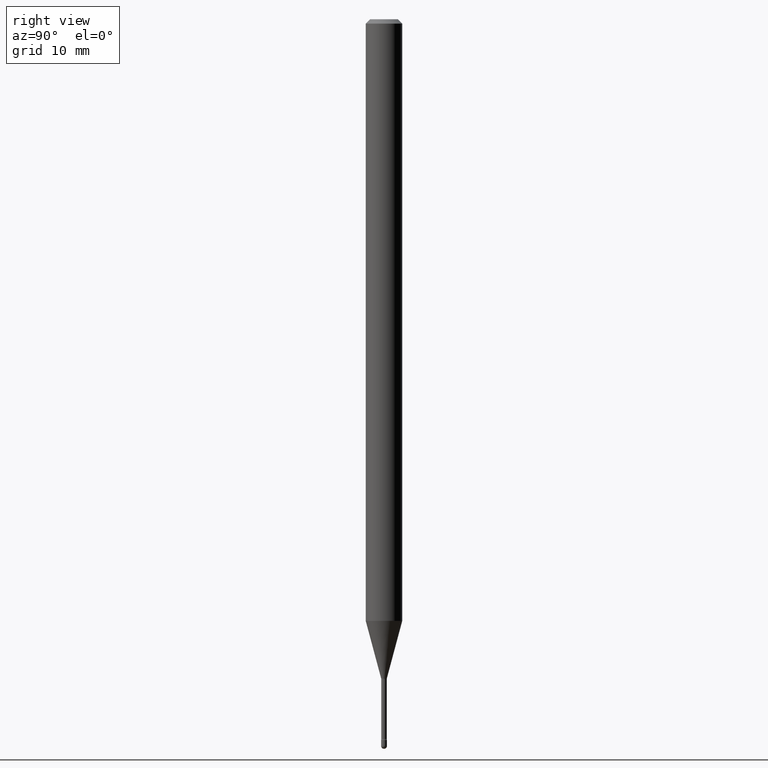
[diagram: clean part render]
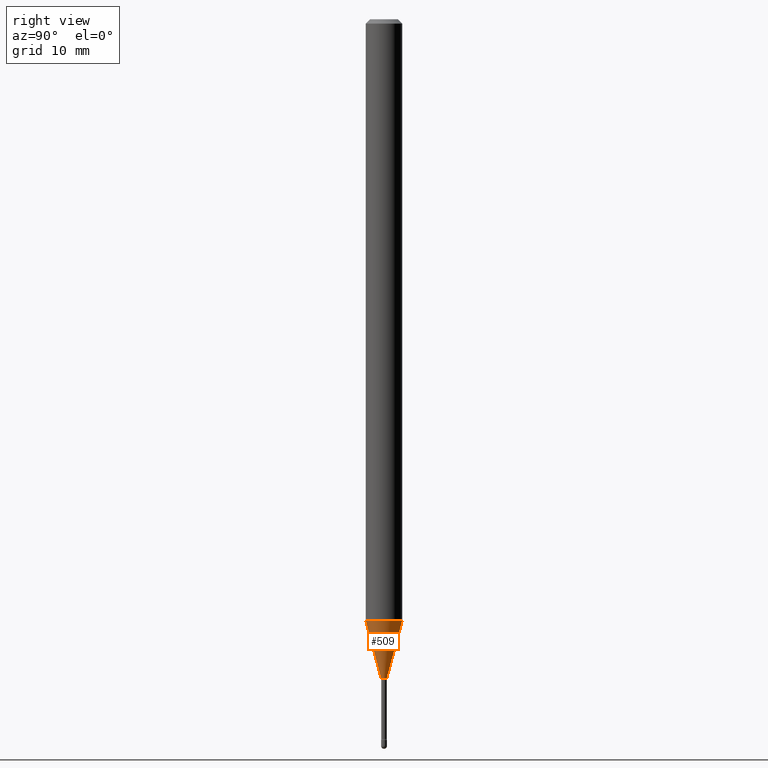
[diagram: same view with one face highlighted and labeled with its STEP entity id]
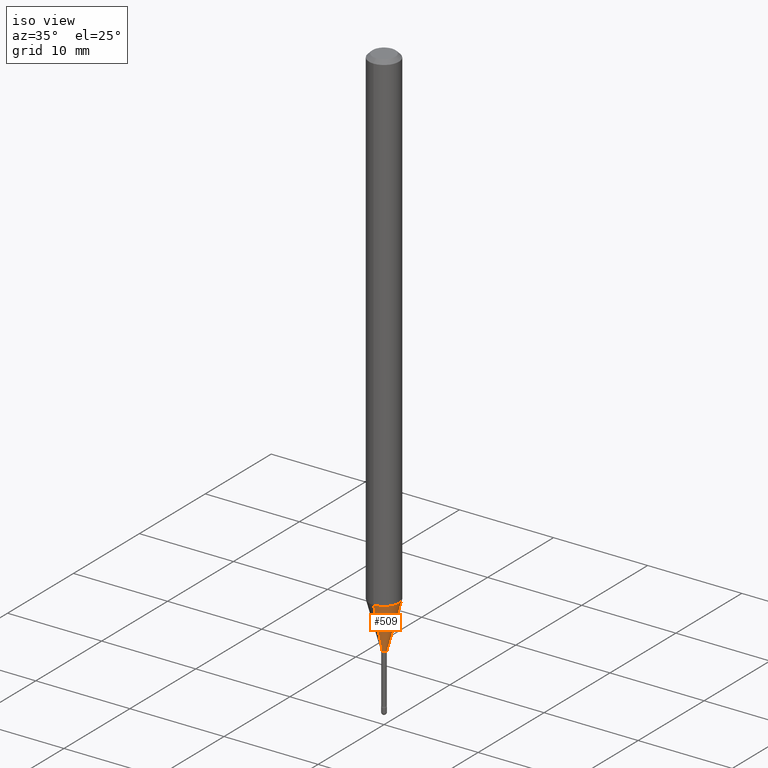
[diagram: same view with one face highlighted and labeled with its STEP entity id]
A machine part, right view. The second image highlights one B-rep face of the part: STEP entity #509.
A second angle (iso view) of the same face is appended — the face is thin or edge-on in the first view.
In plain terms, the highlighted conical surface has half-angle 15 deg.
Its self-contained STEP definition (entity closure, byte-faithful):
#16 = VERTEX_POINT ( 'NONE', #231 ) ;
#47 = CONICAL_SURFACE ( 'NONE', #435, 0.009911112605663977004, 0.2617993877991500740 ) ;
#72 = DIRECTION ( 'NONE',  ( 1.839019923739598738E-15, 0.2588190451025247363, 0.9659258262890673130 ) ) ;
#73 = EDGE_CURVE ( 'NONE', #468, #186, #315, .T. ) ;
#80 = CARTESIAN_POINT ( 'NONE',  ( 5.521981425071489168E-29, -7.884250154350085352E-15, -2.258092501787273498 ) ) ;
#82 = LINE ( 'NONE', #87, #338 ) ;
#87 = CARTESIAN_POINT ( 'NONE',  ( -6.920892941964220806E-17, -0.009911112605671861323, -2.258092501787273498 ) ) ;
#94 = VERTEX_POINT ( 'NONE', #356 ) ;
#105 = ORIENTED_EDGE ( 'NONE', *, *, #336, .T. ) ;
#130 = DIRECTION ( 'NONE',  ( -6.982962677686265922E-15, -1.000000000000000000, 0.000000000000000000 ) ) ;
#135 = DIRECTION ( 'NONE',  ( -2.445418609158330571E-29, 3.491553223842568999E-15, 1.000000000000000000 ) ) ;
#159 = EDGE_LOOP ( 'NONE', ( #105, #498, #225, #330 ) ) ;
#186 = VERTEX_POINT ( 'NONE', #440 ) ;
#201 = AXIS2_PLACEMENT_3D ( 'NONE', #473, #258, #229 ) ;
#225 = ORIENTED_EDGE ( 'NONE', *, *, #73, .F. ) ;
#229 = DIRECTION ( 'NONE',  ( -6.982962677686265922E-15, -1.000000000000000000, 0.000000000000000000 ) ) ;
#231 = CARTESIAN_POINT ( 'NONE',  ( -6.920892941964220806E-17, -0.009911112605671861323, -2.258092501787273498 ) ) ;
#255 = DIRECTION ( 'NONE',  ( -2.445418609158330571E-29, 3.491553223842568999E-15, 1.000000000000000000 ) ) ;
#258 = DIRECTION ( 'NONE',  ( -2.445418609158330571E-29, 3.491553223842568999E-15, 1.000000000000000000 ) ) ;
#285 = EDGE_CURVE ( 'NONE', #94, #186, #478, .T. ) ;
#315 = CIRCLE ( 'NONE', #367, 0.06250000000000000000 ) ;
#330 = ORIENTED_EDGE ( 'NONE', *, *, #529, .F. ) ;
#336 = EDGE_CURVE ( 'NONE', #16, #94, #430, .T. ) ;
#338 = VECTOR ( 'NONE', #561, 39.37007874015748854 ) ;
#353 = DIRECTION ( 'NONE',  ( -6.982962677686265922E-15, -1.000000000000000000, 4.370956789862821150E-15 ) ) ;
#356 = CARTESIAN_POINT ( 'NONE',  ( 2.572559502513586973E-16, 0.009911112605656092686, -2.258092501787273498 ) ) ;
#367 = AXIS2_PLACEMENT_3D ( 'NONE', #484, #135, #353 ) ;
#396 = CARTESIAN_POINT ( 'NONE',  ( 7.042269065260418039E-17, 0.009911112605656092686, -2.258092501787273498 ) ) ;
#430 = CIRCLE ( 'NONE', #201, 0.009911112605663977004 ) ;
#435 = AXIS2_PLACEMENT_3D ( 'NONE', #80, #255, #130 ) ;
#440 = CARTESIAN_POINT ( 'NONE',  ( 4.440892098501128074E-16, 0.06249999999999279743, -2.061828102118093753 ) ) ;
#450 = CARTESIAN_POINT ( 'NONE',  ( -4.364351673553412316E-16, -0.06250000000000720257, -2.061828102118092865 ) ) ;
#468 = VERTEX_POINT ( 'NONE', #450 ) ;
#471 = FACE_OUTER_BOUND ( 'NONE', #159, .T. ) ;
#473 = CARTESIAN_POINT ( 'NONE',  ( 5.521981425071489168E-29, -7.884250154350085352E-15, -2.258092501787273498 ) ) ;
#474 = VECTOR ( 'NONE', #72, 39.37007874015748854 ) ;
#478 = LINE ( 'NONE', #396, #474 ) ;
#484 = CARTESIAN_POINT ( 'NONE',  ( 5.042032809805188543E-29, -7.198982556959635817E-15, -2.061828102118093309 ) ) ;
#498 = ORIENTED_EDGE ( 'NONE', *, *, #285, .T. ) ;
#509 = ADVANCED_FACE ( 'NONE', ( #471 ), #47, .T. ) ;
#529 = EDGE_CURVE ( 'NONE', #16, #468, #82, .T. ) ;
#561 = DIRECTION ( 'NONE',  ( -1.807323732225328562E-15, -0.2588190451025179639, 0.9659258262890690894 ) ) ;